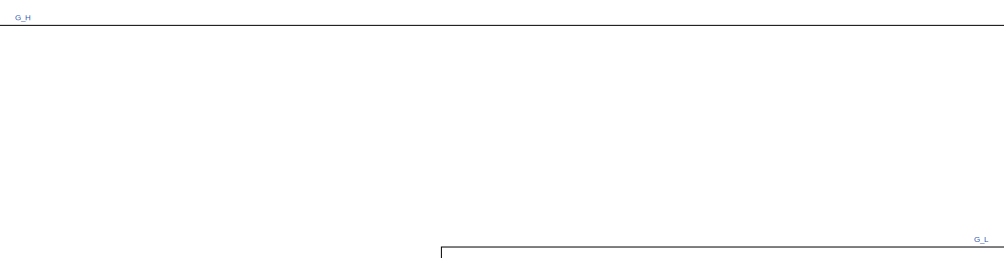
[diagram: root canvas - part 1/11, top center region]
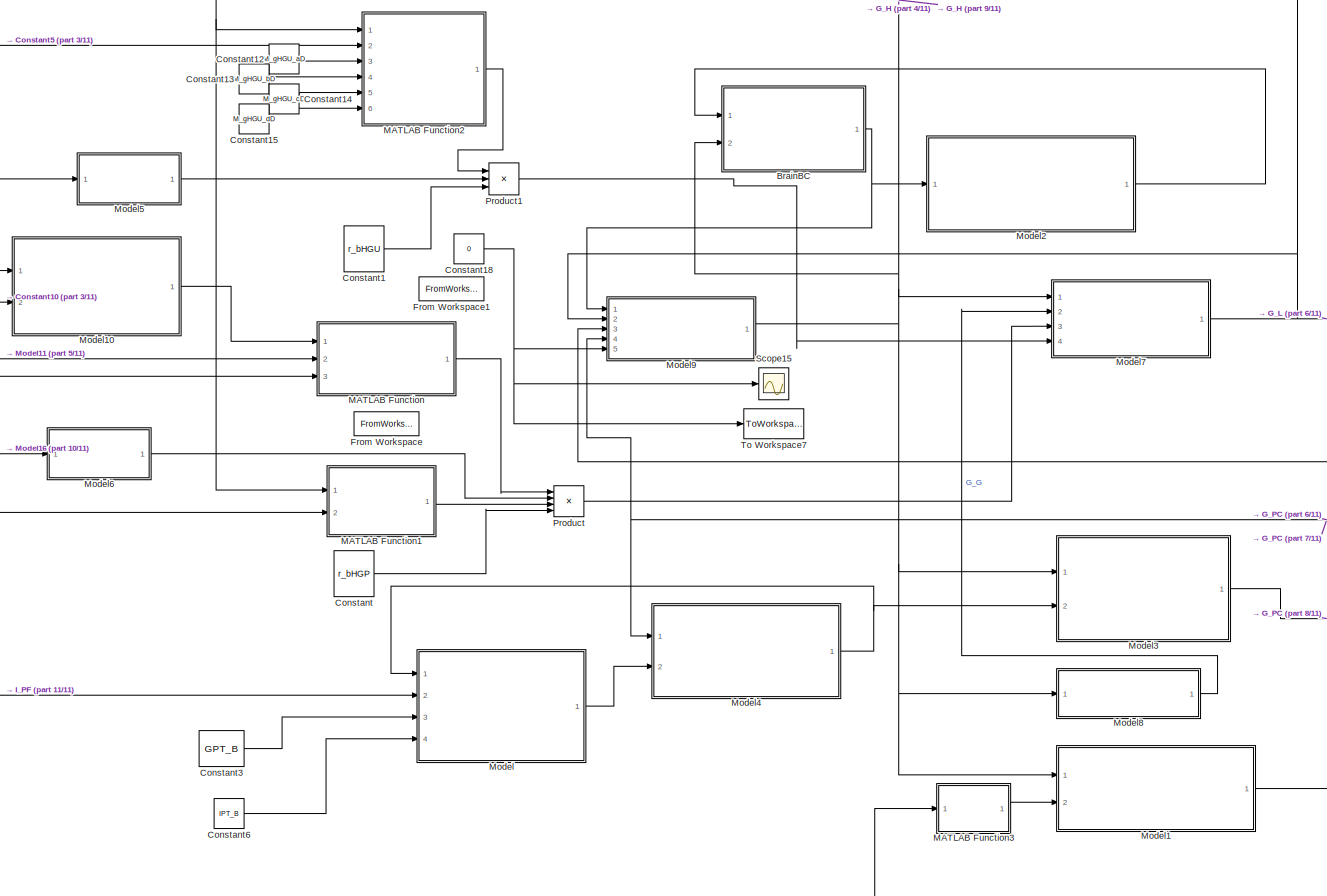
[diagram: root canvas - part 2/11, top right region]
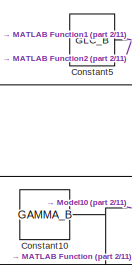
[diagram: root canvas - part 3/11, top center region]
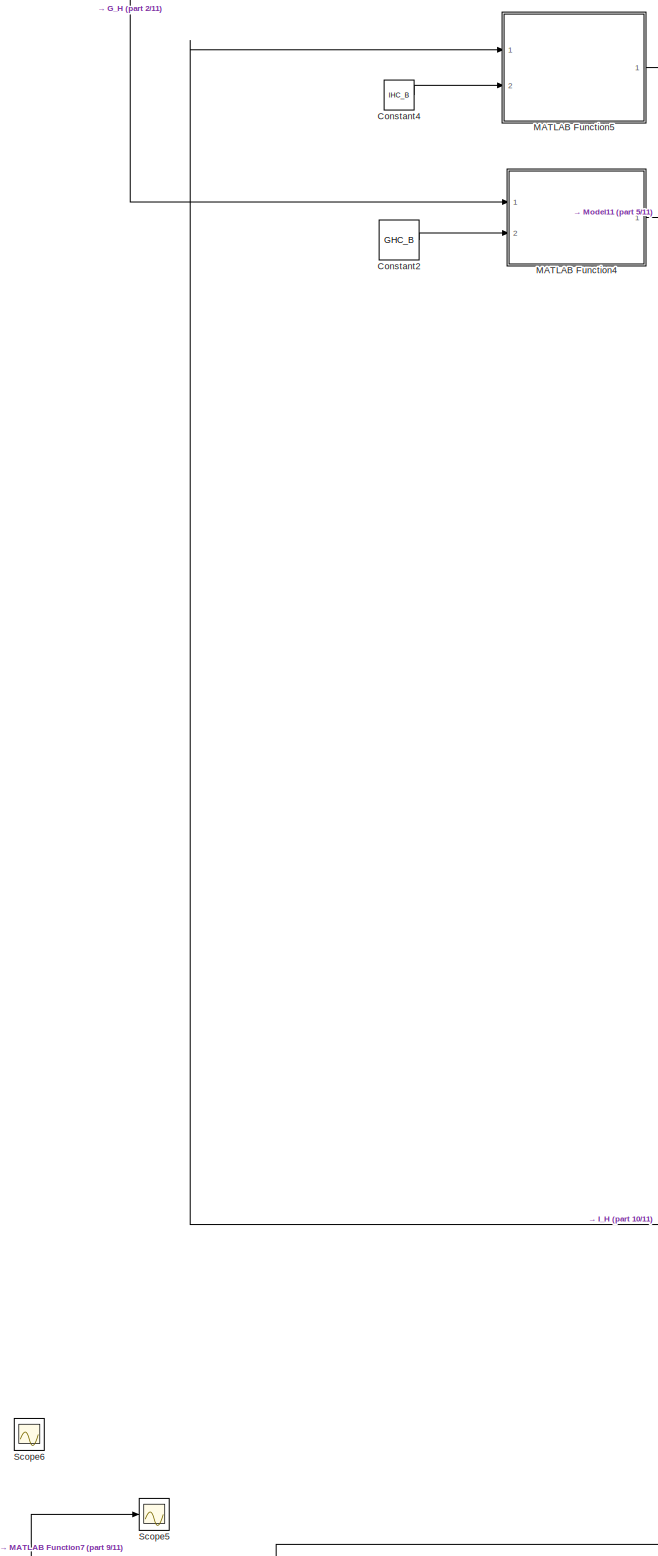
[diagram: root canvas - part 4/11, middle left region]
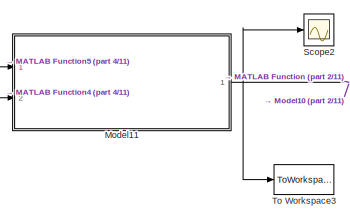
[diagram: root canvas - part 5/11, top left region]
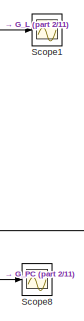
[diagram: root canvas - part 6/11, top right region]
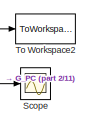
[diagram: root canvas - part 7/11, top right region]
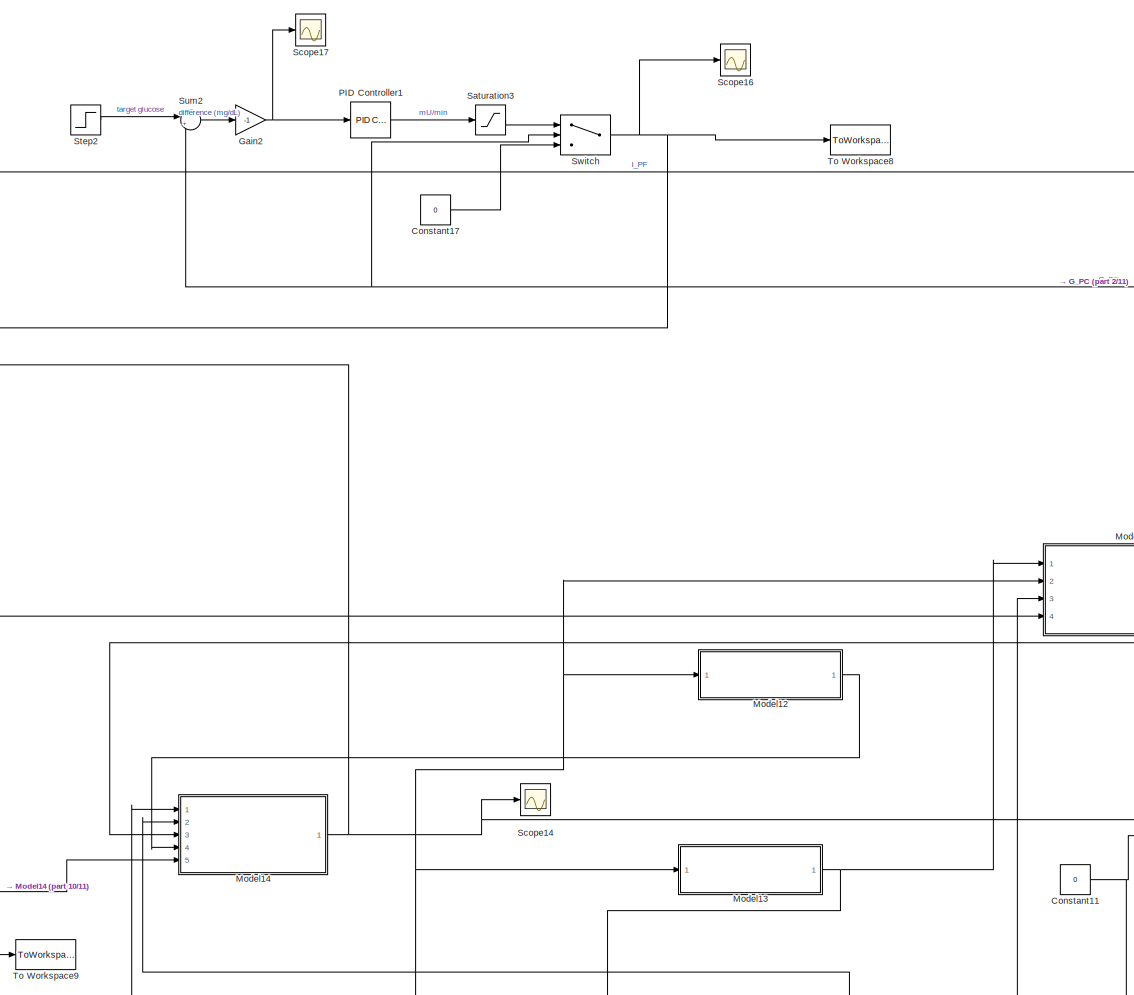
[diagram: root canvas - part 8/11, bottom center region]
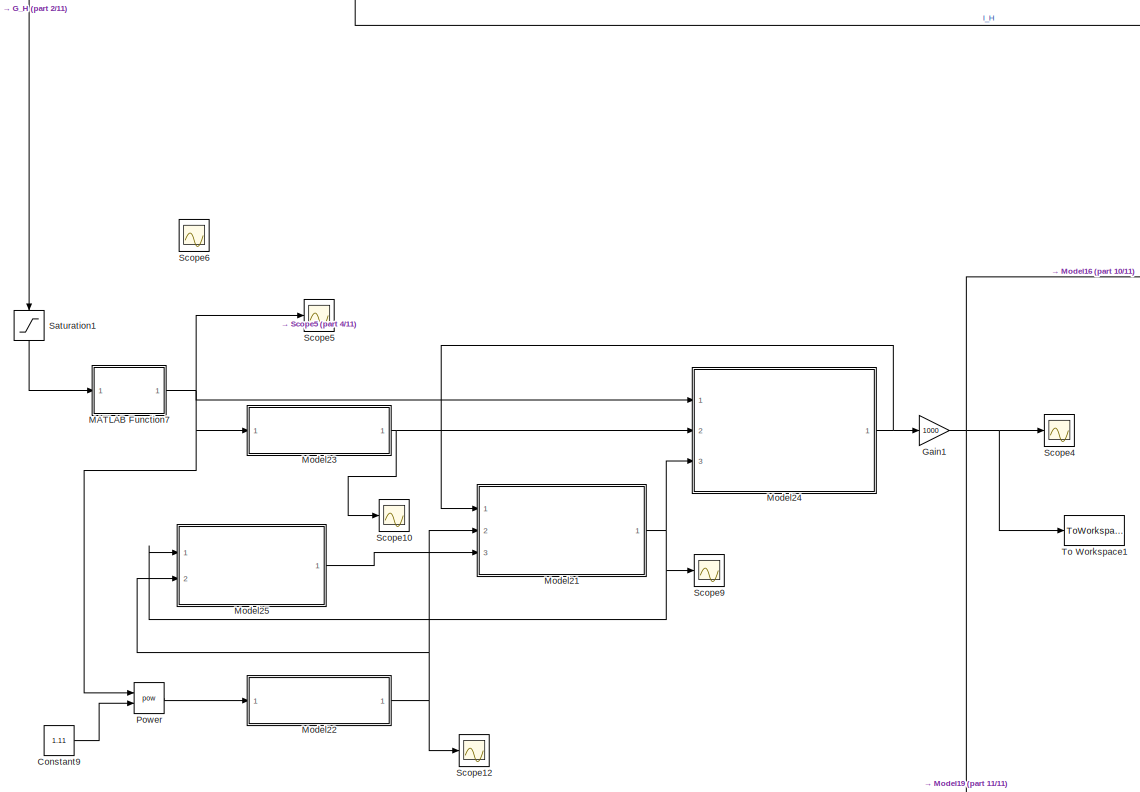
[diagram: root canvas - part 9/11, bottom left region]
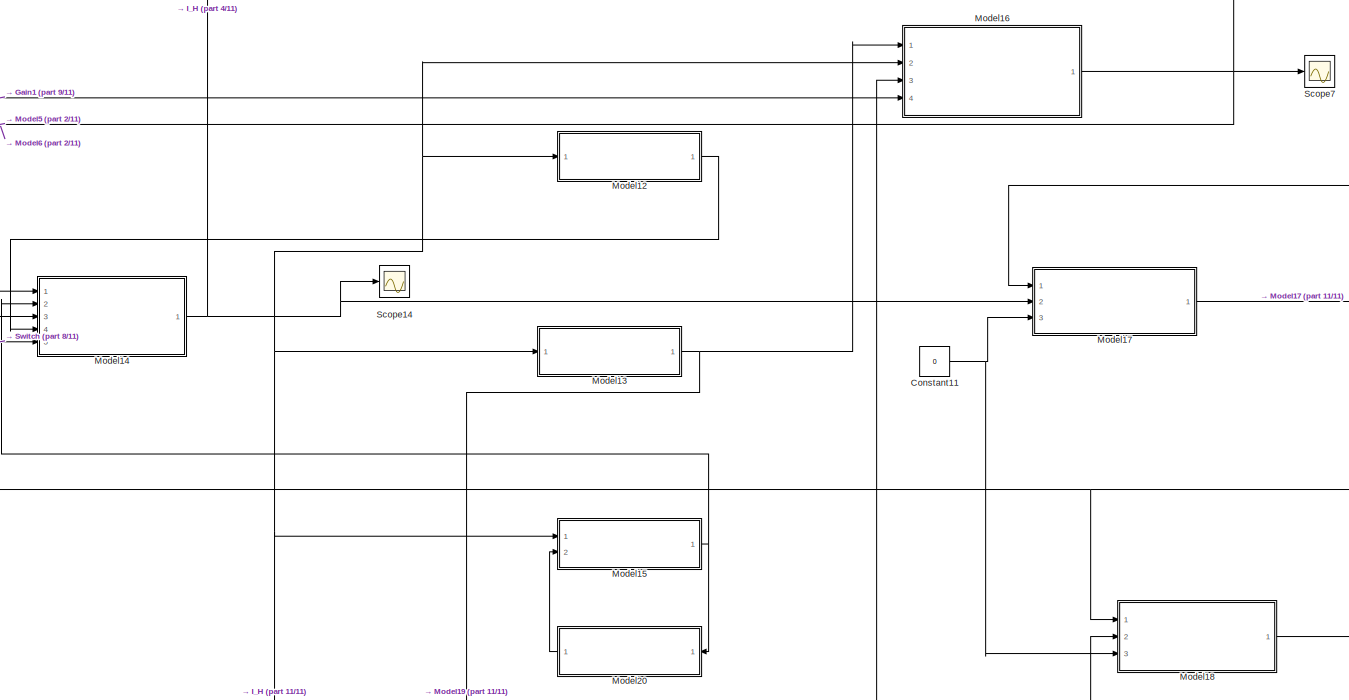
[diagram: root canvas - part 10/11, bottom center region]
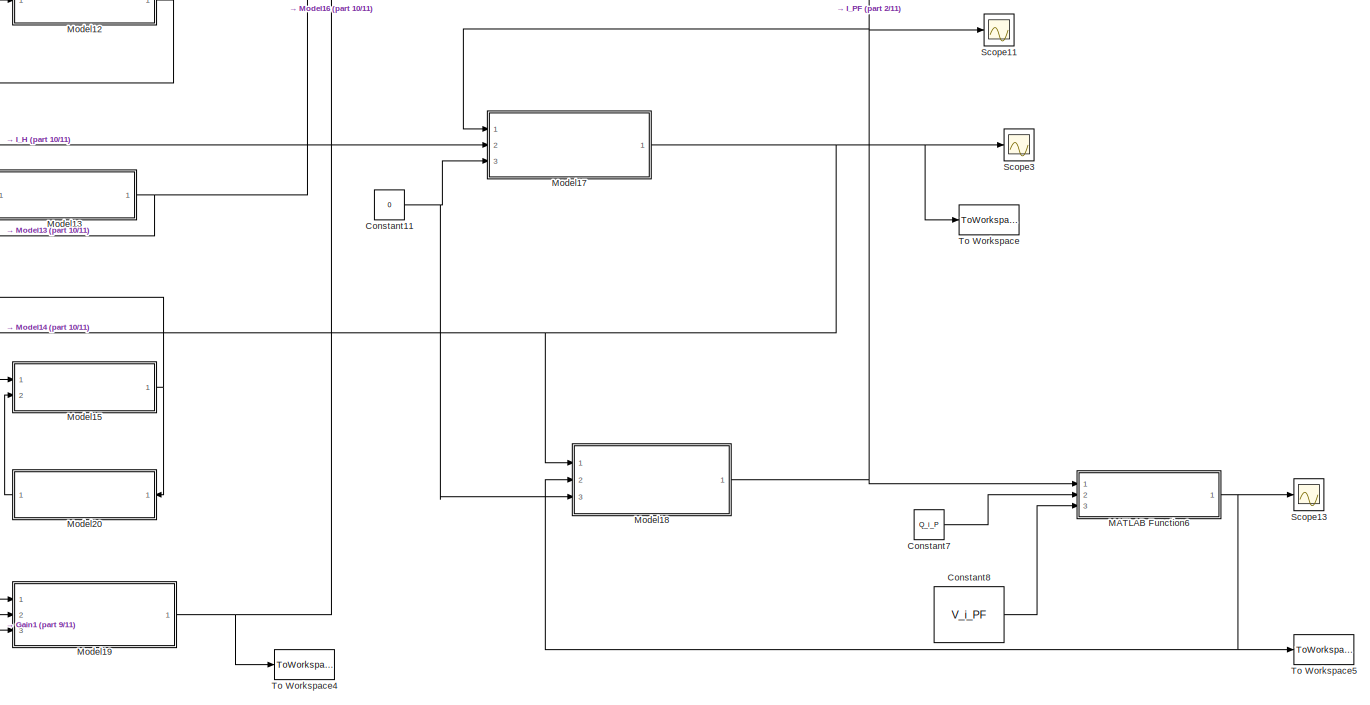
[diagram: root canvas - part 11/11, bottom right region]
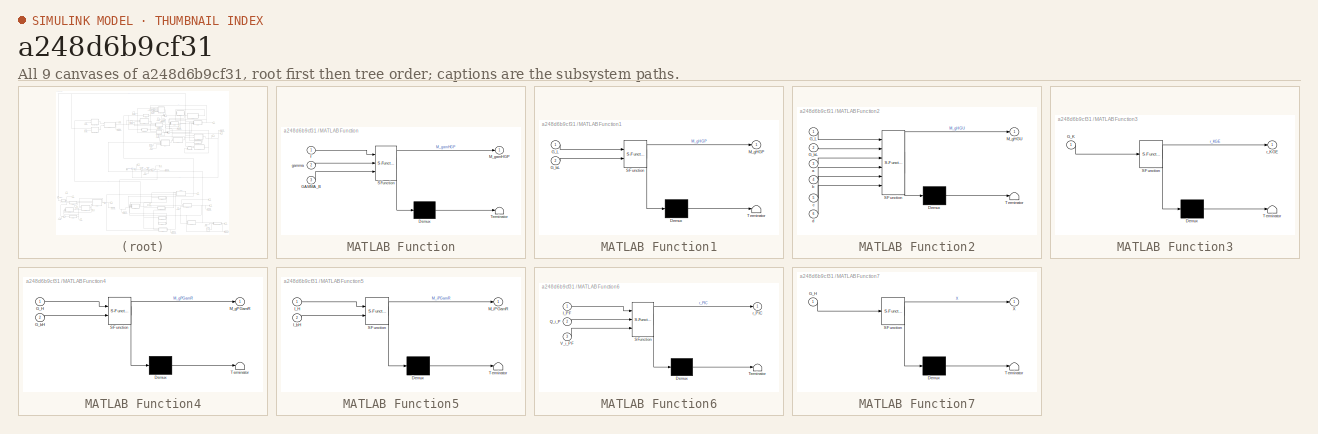
[diagram: thumbnail index - all 9 canvases of the model, root first then tree order]
MODEL slx_a248d6b9cf31
KIND model
CONFIG AbsTol = auto
CONFIG EnableMultiTasking = off
CONFIG FixedStep = auto
CONFIG MaxStep = auto
CONFIG MinStep = auto
CONFIG RelTol = 1e-3
CONFIG SampleTimeConstraint = Unconstrained
CONFIG Solver = VariableStepAuto
CONFIG SolverName = VariableStepAuto
CONFIG StartTime = 0.0
CONFIG StopTime = 1500
BLOCK [ModelReference] BrainBC
  ModelNameDialog = BrainBC
  ModelReferenceVersion = 1.6
  Ports = [2, 1]
BLOCK [Constant] Constant
  Value = r_bHGP
BLOCK [Constant] Constant1
  Value = r_bHGU
BLOCK [Constant] Constant10
  Value = GAMMA_B
BLOCK [Constant] Constant11
  Value = 0
BLOCK [Constant] Constant12
  Value = M_gHGU_aD
BLOCK [Constant] Constant13
  Value = M_gHGU_bD
BLOCK [Constant] Constant14
  Value = M_gHGU_cD
BLOCK [Constant] Constant15
  Value = M_gHGU_dD
BLOCK [Constant] Constant17
  Value = 0
BLOCK [Constant] Constant18
  Value = 0
BLOCK [Constant] Constant2
  Value = GHC_B
BLOCK [Constant] Constant3
  Value = GPT_B
BLOCK [Constant] Constant4
  Value = IHC_B
BLOCK [Constant] Constant5
  Value = GLC_B
BLOCK [Constant] Constant6
  Value = IPT_B
BLOCK [Constant] Constant7
  Value = Q_i_P
BLOCK [Constant] Constant8
  Value = V_i_PF
BLOCK [Constant] Constant9
  Value = 1.11
BLOCK [FromWorkspace] From Workspace
  SampleTime = 0
  VariableName = glucoseInputTS
  ZeroCross = on
BLOCK [FromWorkspace] From Workspace1
  SampleTime = 0
  VariableName = glucoseInputTS
  ZeroCross = on
BLOCK [Gain] Gain1
  Gain = 1000
  OutDataTypeStr = Inherit: Inherit via internal rule
  ParamDataTypeStr = Inherit: Inherit via internal rule
  SaturateOnIntegerOverflow = off
BLOCK [Gain] Gain2
  Gain = -1
  OutDataTypeStr = Inherit: Inherit via internal rule
  ParamDataTypeStr = Inherit: Inherit via internal rule
  SaturateOnIntegerOverflow = off
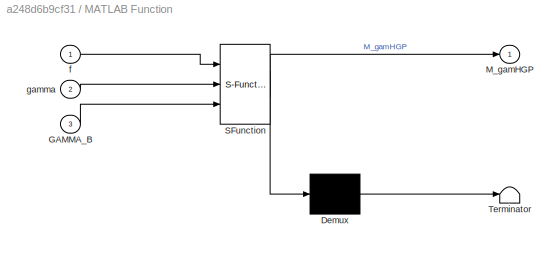
BLOCK [SubSystem] MATLAB Function
  ErrorFcn = Stateflow.Translate.translate
  PermitHierarchicalResolution = ExplicitOnly
  Ports = [3, 1]
  RequestExecContextInheritance = off
  SFBlockType = MATLAB Function
  TreatAsAtomicUnit = on
BLOCK [Demux] MATLAB Function/ Demux 
  Outputs = 1
  Ports = [1, 1]
BLOCK [S-Function] MATLAB Function/ SFunction 
  EnableBusSupport = on
  FunctionName = sf_sfun
  PortCounts = [3 2]
  Ports = [3, 2]
  SFcnIsStateOwnerBlock = off
  SFunctionDeploymentMode = off
  Tag = Stateflow S-Function GlucagonGlucoseIntegration 2
BLOCK [Terminator] MATLAB Function/ Terminator 
BLOCK [Inport] MATLAB Function/GAMMA_B
  IconDisplay = Port number
  Port = 3
BLOCK [Outport] MATLAB Function/M_gamHGP
  IconDisplay = Port number
BLOCK [Inport] MATLAB Function/f
  IconDisplay = Port number
BLOCK [Inport] MATLAB Function/gamma
  IconDisplay = Port number
  Port = 2
BLOCK [SubSystem] MATLAB Function1
  ErrorFcn = Stateflow.Translate.translate
  PermitHierarchicalResolution = ExplicitOnly
  Ports = [2, 1]
  RequestExecContextInheritance = off
  SFBlockType = MATLAB Function
  TreatAsAtomicUnit = on
BLOCK [Demux] MATLAB Function1/ Demux 
  Outputs = 1
  Ports = [1, 1]
BLOCK [S-Function] MATLAB Function1/ SFunction 
  EnableBusSupport = on
  FunctionName = sf_sfun
  PortCounts = [2 2]
  Ports = [2, 2]
  SFcnIsStateOwnerBlock = off
  SFunctionDeploymentMode = off
  Tag = Stateflow S-Function GlucagonGlucoseIntegration 1
BLOCK [Terminator] MATLAB Function1/ Terminator 
BLOCK [Inport] MATLAB Function1/G_L
  IconDisplay = Port number
BLOCK [Inport] MATLAB Function1/G_bL
  IconDisplay = Port number
  Port = 2
BLOCK [Outport] MATLAB Function1/M_gHGP
  IconDisplay = Port number
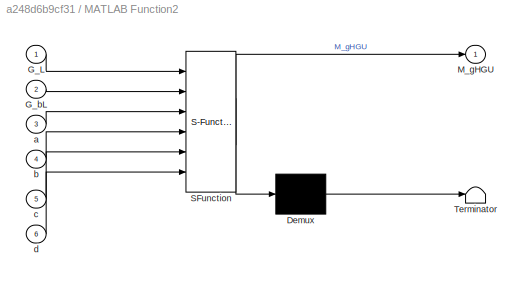
BLOCK [SubSystem] MATLAB Function2
  ErrorFcn = Stateflow.Translate.translate
  PermitHierarchicalResolution = ExplicitOnly
  Ports = [6, 1]
  RequestExecContextInheritance = off
  SFBlockType = MATLAB Function
  TreatAsAtomicUnit = on
BLOCK [Demux] MATLAB Function2/ Demux 
  Outputs = 1
  Ports = [1, 1]
BLOCK [S-Function] MATLAB Function2/ SFunction 
  EnableBusSupport = on
  FunctionName = sf_sfun
  PortCounts = [6 2]
  Ports = [6, 2]
  SFcnIsStateOwnerBlock = off
  SFunctionDeploymentMode = off
  Tag = Stateflow S-Function GlucagonGlucoseIntegration 3
BLOCK [Terminator] MATLAB Function2/ Terminator 
BLOCK [Inport] MATLAB Function2/G_L
  IconDisplay = Port number
BLOCK [Inport] MATLAB Function2/G_bL
  IconDisplay = Port number
  Port = 2
BLOCK [Outport] MATLAB Function2/M_gHGU
  IconDisplay = Port number
BLOCK [Inport] MATLAB Function2/a
  IconDisplay = Port number
  Port = 3
BLOCK [Inport] MATLAB Function2/b
  IconDisplay = Port number
  Port = 4
BLOCK [Inport] MATLAB Function2/c
  IconDisplay = Port number
  Port = 5
BLOCK [Inport] MATLAB Function2/d
  IconDisplay = Port number
  Port = 6
BLOCK [SubSystem] MATLAB Function3
  ErrorFcn = Stateflow.Translate.translate
  PermitHierarchicalResolution = ExplicitOnly
  Ports = [1, 1]
  RequestExecContextInheritance = off
  SFBlockType = MATLAB Function
  TreatAsAtomicUnit = on
BLOCK [Demux] MATLAB Function3/ Demux 
  Outputs = 1
  Ports = [1, 1]
BLOCK [S-Function] MATLAB Function3/ SFunction 
  EnableBusSupport = on
  FunctionName = sf_sfun
  PortCounts = [1 2]
  Ports = [1, 2]
  SFcnIsStateOwnerBlock = off
  SFunctionDeploymentMode = off
  Tag = Stateflow S-Function GlucagonGlucoseIntegration 4
BLOCK [Terminator] MATLAB Function3/ Terminator 
BLOCK [Inport] MATLAB Function3/G_K
  IconDisplay = Port number
BLOCK [Outport] MATLAB Function3/r_KGE
  IconDisplay = Port number
BLOCK [SubSystem] MATLAB Function4
  ErrorFcn = Stateflow.Translate.translate
  PermitHierarchicalResolution = ExplicitOnly
  Ports = [2, 1]
  RequestExecContextInheritance = off
  SFBlockType = MATLAB Function
  TreatAsAtomicUnit = on
BLOCK [Demux] MATLAB Function4/ Demux 
  Outputs = 1
  Ports = [1, 1]
BLOCK [S-Function] MATLAB Function4/ SFunction 
  EnableBusSupport = on
  FunctionName = sf_sfun
  PortCounts = [2 2]
  Ports = [2, 2]
  SFcnIsStateOwnerBlock = off
  SFunctionDeploymentMode = off
  Tag = Stateflow S-Function GlucagonGlucoseIntegration 5
BLOCK [Terminator] MATLAB Function4/ Terminator 
BLOCK [Inport] MATLAB Function4/G_H
  IconDisplay = Port number
BLOCK [Inport] MATLAB Function4/G_bH
  IconDisplay = Port number
  Port = 2
BLOCK [Outport] MATLAB Function4/M_gPGamR
  IconDisplay = Port number
BLOCK [SubSystem] MATLAB Function5
  ErrorFcn = Stateflow.Translate.translate
  PermitHierarchicalResolution = ExplicitOnly
  Ports = [2, 1]
  RequestExecContextInheritance = off
  SFBlockType = MATLAB Function
  TreatAsAtomicUnit = on
BLOCK [Demux] MATLAB Function5/ Demux 
  Outputs = 1
  Ports = [1, 1]
BLOCK [S-Function] MATLAB Function5/ SFunction 
  EnableBusSupport = on
  FunctionName = sf_sfun
  PortCounts = [2 2]
  Ports = [2, 2]
  SFcnIsStateOwnerBlock = off
  SFunctionDeploymentMode = off
  Tag = Stateflow S-Function GlucagonGlucoseIntegration 6
BLOCK [Terminator] MATLAB Function5/ Terminator 
BLOCK [Inport] MATLAB Function5/I_H
  IconDisplay = Port number
BLOCK [Inport] MATLAB Function5/I_bH
  IconDisplay = Port number
  Port = 2
BLOCK [Outport] MATLAB Function5/M_iPGamR
  IconDisplay = Port number
BLOCK [SubSystem] MATLAB Function6
  ErrorFcn = Stateflow.Translate.translate
  PermitHierarchicalResolution = ExplicitOnly
  Ports = [3, 1]
  RequestExecContextInheritance = off
  SFBlockType = MATLAB Function
  TreatAsAtomicUnit = on
BLOCK [Demux] MATLAB Function6/ Demux 
  Outputs = 1
  Ports = [1, 1]
BLOCK [S-Function] MATLAB Function6/ SFunction 
  EnableBusSupport = on
  FunctionName = sf_sfun
  PortCounts = [3 2]
  Ports = [3, 2]
  SFcnIsStateOwnerBlock = off
  SFunctionDeploymentMode = off
  Tag = Stateflow S-Function GlucagonGlucoseIntegration 7
BLOCK [Terminator] MATLAB Function6/ Terminator 
BLOCK [Inport] MATLAB Function6/I_PF
  IconDisplay = Port number
BLOCK [Inport] MATLAB Function6/Q_i_P
  IconDisplay = Port number
  Port = 2
BLOCK [Inport] MATLAB Function6/V_i_PF
  IconDisplay = Port number
  Port = 3
BLOCK [Outport] MATLAB Function6/r_PIC
  IconDisplay = Port number
BLOCK [SubSystem] MATLAB Function7
  ErrorFcn = Stateflow.Translate.translate
  PermitHierarchicalResolution = ExplicitOnly
  Ports = [1, 1]
  RequestExecContextInheritance = off
  SFBlockType = MATLAB Function
  TreatAsAtomicUnit = on
BLOCK [Demux] MATLAB Function7/ Demux 
  Outputs = 1
  Ports = [1, 1]
BLOCK [S-Function] MATLAB Function7/ SFunction 
  EnableBusSupport = on
  FunctionName = sf_sfun
  PortCounts = [1 2]
  Ports = [1, 2]
  SFcnIsStateOwnerBlock = off
  SFunctionDeploymentMode = off
  Tag = Stateflow S-Function GlucagonGlucoseIntegration 8
BLOCK [Terminator] MATLAB Function7/ Terminator 
BLOCK [Inport] MATLAB Function7/G_H
  IconDisplay = Port number
BLOCK [Outport] MATLAB Function7/X
  IconDisplay = Port number
BLOCK [ModelReference] Model
  ModelNameDialog = r_PGU
  ModelReferenceVersion = 1.9
  Ports = [4, 1]
BLOCK [ModelReference] Model1
  ModelNameDialog = G_K
  ModelReferenceVersion = 1.4
  Ports = [2, 1]
BLOCK [ModelReference] Model10
  ModelNameDialog = f
  ModelReferenceVersion = 1.10
  Ports = [2, 1]
BLOCK [ModelReference] Model11
  ModelNameDialog = gamma_block
  ModelReferenceVersion = 1.5
  Ports = [2, 1]
BLOCK [ModelReference] Model12
  ModelNameDialog = Brain_Insulin32
  ModelReferenceVersion = 1.3
  Ports = [1, 1]
BLOCK [ModelReference] Model13
  ModelNameDialog = Gastro_Insulin34
  ModelReferenceVersion = 1.3
  Ports = [1, 1]
BLOCK [ModelReference] Model14
  ModelNameDialog = Heart_Insulin33
  ModelReferenceVersion = 1.9
  Ports = [5, 1]
BLOCK [ModelReference] Model15
  ModelNameDialog = Kidney_Insulin36
  ModelReferenceVersion = 1.7
  Ports = [2, 1]
BLOCK [ModelReference] Model16
  ModelNameDialog = Liver_Insulin35
  ModelReferenceVersion = 1.7
  Ports = [4, 1]
BLOCK [ModelReference] Model17
  ModelNameDialog = PeripheralCap_Insulin37
  ModelReferenceVersion = 1.9
  Ports = [3, 1]
BLOCK [ModelReference] Model18
  ModelNameDialog = PeripheralFluid_Insulin38
  ModelReferenceVersion = 1.5
  Ports = [3, 1]
BLOCK [ModelReference] Model19
  ModelNameDialog = r_LIC
  ModelReferenceVersion = 1.2
  Ports = [3, 1]
BLOCK [ModelReference] Model2
  ModelNameDialog = BrainBF
  ModelReferenceVersion = 1.6
  Ports = [1, 1]
BLOCK [ModelReference] Model20
  ModelNameDialog = r_KIC
  ModelReferenceVersion = 1.1
  Ports = [1, 1]
BLOCK [ModelReference] Model21
  ModelNameDialog = m_model
  ModelReferenceVersion = 1.10
  Ports = [3, 1]
BLOCK [ModelReference] Model22
  ModelNameDialog = P_model
  ModelReferenceVersion = 1.10
  Ports = [1, 1]
BLOCK [ModelReference] Model23
  ModelNameDialog = R_model.slx
  ModelReferenceVersion = 1.8
  Ports = [1, 1]
BLOCK [ModelReference] Model24
  ModelNameDialog = S_new
  ModelReferenceVersion = 1.4
  Ports = [3, 1]
BLOCK [ModelReference] Model25
  ModelNameDialog = ms_model
  ModelReferenceVersion = 1.8
  Ports = [2, 1]
BLOCK [ModelReference] Model3
  ModelNameDialog = G_PC
  ModelReferenceVersion = 1.5
  Ports = [2, 1]
BLOCK [ModelReference] Model4
  ModelNameDialog = G_PF
  ModelReferenceVersion = 1.3
  Ports = [2, 1]
BLOCK [ModelReference] Model5
  ModelNameDialog = M_iHGU
  ModelReferenceVersion = 1.8
  Ports = [1, 1]
BLOCK [ModelReference] Model6
  ModelNameDialog = M_iHGP
  ModelReferenceVersion = 1.5
  Ports = [1, 1]
BLOCK [ModelReference] Model7
  ModelNameDialog = Liver
  ModelReferenceVersion = 1.6
  Ports = [4, 1]
BLOCK [ModelReference] Model8
  ModelNameDialog = GI
  ModelReferenceVersion = 1.4
  Ports = [1, 1]
BLOCK [ModelReference] Model9
  ModelNameDialog = Heart
  ModelReferenceVersion = 1.9
  Ports = [5, 1]
BLOCK [Reference] PID Controller1  REF=simulink/Continuous/PID Controller
  Ports = [1, 1]
  SourceBlock = simulink/Continuous/PID Controller
  SourceProductBaseCode = SL
  SourceProductName = Simulink
  SourceType = PID 1dof
BLOCK [Math] Power
  Operator = pow
  Ports = [2, 1]
BLOCK [Product] Product
  InputSameDT = off
  Inputs = 4
  OutDataTypeStr = Inherit: Inherit via internal rule
  Ports = [4, 1]
  RndMeth = Floor
  SaturateOnIntegerOverflow = off
BLOCK [Product] Product1
  InputSameDT = off
  Inputs = 3
  OutDataTypeStr = Inherit: Inherit via internal rule
  Ports = [3, 1]
  RndMeth = Floor
  SaturateOnIntegerOverflow = off
BLOCK [Saturate] Saturation1
  InputPortMap = u0
  LowerLimit = 0
  Ports = [1, 1]
  UpperLimit = inf
BLOCK [Saturate] Saturation3
  InputPortMap = u0
  LowerLimit = 0
  Ports = [1, 1]
  UpperLimit = 12000
BLOCK [Scope] Scope
  Floating = off
  NumInputPorts = 1
  Ports = [1]
  ScopeSpecificationString = Simulink.scopes.TimeScopeBlockCfg('CurrentConfiguration', extmgr.ConfigurationSet(extmgr.Configuration('Core','General UI',true),extmgr.Configuration('Core','Source UI',true),extmgr.Configuration('Sources','WiredSimulink',true,'DataLoggingVariableName','ScopeData1'),extmgr.Configuration('Visuals','Time Domain',true,'SerializedDisplays',{struct('MinYLimReal','48.1591','MaxYLimReal','543.96104','YLa...<+1416ch>
BLOCK [Scope] Scope1
  Floating = off
  NumInputPorts = 1
  Ports = [1]
  ScopeSpecificationString = Simulink.scopes.TimeScopeBlockCfg('CurrentConfiguration', extmgr.ConfigurationSet(extmgr.Configuration('Core','General UI',true),extmgr.Configuration('Core','Source UI',true),extmgr.Configuration('Sources','WiredSimulink',true),extmgr.Configuration('Visuals','Time Domain',true,'SerializedDisplays',{struct('MinYLimReal','45.77002','MaxYLimReal','178.0754','YLabelReal','','MinYLimMag','45.77002','Ma...<+1358ch>
BLOCK [Scope] Scope10
  Floating = off
  NumInputPorts = 1
  Ports = [1]
  ScopeSpecificationString = Simulink.scopes.TimeScopeBlockCfg('CurrentConfiguration', extmgr.ConfigurationSet(extmgr.Configuration('Core','General UI',true),extmgr.Configuration('Core','Source UI',true),extmgr.Configuration('Sources','WiredSimulink',true,'DataLoggingVariableName','ScopeData2'),extmgr.Configuration('Visuals','Time Domain',true,'SerializedDisplays',{struct('MinYLimReal','-0.04433','MaxYLimReal','0.39893','YLab...<+1442ch>
BLOCK [Scope] Scope11
  Floating = off
  NumInputPorts = 1
  Ports = [1]
  ScopeSpecificationString = Simulink.scopes.TimeScopeBlockCfg('CurrentConfiguration', extmgr.ConfigurationSet(extmgr.Configuration('Core','General UI',true),extmgr.Configuration('Core','Source UI',true),extmgr.Configuration('Sources','WiredSimulink',true,'DataLoggingVariableName','ScopeData3'),extmgr.Configuration('Visuals','Time Domain',true,'SerializedDisplays',{struct('MinYLimReal','0.91132','MaxYLimReal','7.31418','YLabe...<+1391ch>
BLOCK [Scope] Scope12
  Floating = off
  NumInputPorts = 1
  Ports = [1]
  ScopeSpecificationString = Simulink.scopes.TimeScopeBlockCfg('CurrentConfiguration', extmgr.ConfigurationSet(extmgr.Configuration('Core','General UI',true),extmgr.Configuration('Core','Source UI',true),extmgr.Configuration('Sources','WiredSimulink',true,'DataLoggingVariableName','ScopeData4'),extmgr.Configuration('Visuals','Time Domain',true,'SerializedDisplays',{struct('MinYLimReal','-0.02548','MaxYLimReal','0.22933','YLab...<+1441ch>
BLOCK [Scope] Scope13
  Floating = off
  NumInputPorts = 1
  Ports = [1]
  ScopeSpecificationString = Simulink.scopes.TimeScopeBlockCfg('CurrentConfiguration', extmgr.ConfigurationSet(extmgr.Configuration('Core','General UI',true),extmgr.Configuration('Core','Source UI',true),extmgr.Configuration('Sources','WiredSimulink',true,'DataLoggingVariableName','ScopeData5'),extmgr.Configuration('Visuals','Time Domain',true,'SerializedDisplays',{struct('MinYLimReal','0.37511','MaxYLimReal','3.01061','YLabe...<+1403ch>
BLOCK [Scope] Scope14
  Floating = off
  NumInputPorts = 1
  Ports = [1]
  ScopeSpecificationString = Simulink.scopes.TimeScopeBlockCfg('CurrentConfiguration', extmgr.ConfigurationSet(extmgr.Configuration('Core','General UI',true),extmgr.Configuration('Core','Source UI',true),extmgr.Configuration('Sources','WiredSimulink',true,'DataLoggingVariableName','ScopeData6'),extmgr.Configuration('Visuals','Time Domain',true,'SerializedDisplays',{struct('MinYLimReal','-0.33636','MaxYLimReal','50.86855','YLa...<+1397ch>
BLOCK [Scope] Scope15
  Floating = off
  NumInputPorts = 1
  Ports = [1]
  ScopeSpecificationString = Simulink.scopes.TimeScopeBlockCfg('CurrentConfiguration', extmgr.ConfigurationSet(extmgr.Configuration('Core','General UI',true),extmgr.Configuration('Core','Source UI',true),extmgr.Configuration('Sources','WiredSimulink',true,'DataLoggingVariableName','ScopeData1'),extmgr.Configuration('Visuals','Time Domain',true,'SerializedDisplays',{struct('MinYLimReal','16.8192','MaxYLimReal','733.45534','YLa...<+1419ch>
BLOCK [Scope] Scope16
  Floating = off
  NumInputPorts = 1
  Ports = [1]
  ScopeSpecificationString = Simulink.scopes.TimeScopeBlockCfg('CurrentConfiguration', extmgr.ConfigurationSet(extmgr.Configuration('Core','General UI',true),extmgr.Configuration('Core','Source UI',true),extmgr.Configuration('Sources','WiredSimulink',true,'DataLoggingVariableName','ScopeData2'),extmgr.Configuration('Visuals','Time Domain',true,'SerializedDisplays',{struct('MinYLimReal','-1500.00000','MaxYLimReal','13500.00000...<+1439ch>
BLOCK [Scope] Scope17
  Floating = off
  NumInputPorts = 1
  Ports = [1]
  ScopeSpecificationString = Simulink.scopes.TimeScopeBlockCfg('CurrentConfiguration', extmgr.ConfigurationSet(extmgr.Configuration('Core','General UI',true),extmgr.Configuration('Core','Source UI',true),extmgr.Configuration('Sources','WiredSimulink',true,'DataLoggingVariableName','ScopeData3'),extmgr.Configuration('Visuals','Time Domain',true,'SerializedDisplays',{struct('MinYLimReal','-80.64864','MaxYLimReal','67.55245','YL...<+1419ch>
BLOCK [Scope] Scope2
  Floating = off
  NumInputPorts = 1
  Ports = [1]
  ScopeSpecificationString = Simulink.scopes.TimeScopeBlockCfg('CurrentConfiguration', extmgr.ConfigurationSet(extmgr.Configuration('Core','General UI',true),extmgr.Configuration('Core','Source UI',true),extmgr.Configuration('Sources','WiredSimulink',true,'DataLoggingVariableName','ScopeData2'),extmgr.Configuration('Visuals','Time Domain',true,'SerializedDisplays',{struct('MinYLimReal','-0.46805','MaxYLimReal','4.21243','YLab...<+1366ch>
BLOCK [Scope] Scope3
  Floating = off
  NumInputPorts = 1
  Ports = [1]
  ScopeSpecificationString = Simulink.scopes.TimeScopeBlockCfg('CurrentConfiguration', extmgr.ConfigurationSet(extmgr.Configuration('Core','General UI',true),extmgr.Configuration('Core','Source UI',true),extmgr.Configuration('Sources','WiredSimulink',true,'DataLoggingVariableName','ScopeData1'),extmgr.Configuration('Visuals','Time Domain',true,'SerializedDisplays',{struct('MinYLimReal','0.58245','MaxYLimReal','28.96694','YLab...<+1394ch>
BLOCK [Scope] Scope4
  Floating = off
  NumInputPorts = 1
  Ports = [1]
  ScopeSpecificationString = Simulink.scopes.TimeScopeBlockCfg('CurrentConfiguration', extmgr.ConfigurationSet(extmgr.Configuration('Core','General UI',true),extmgr.Configuration('Core','Source UI',true),extmgr.Configuration('Sources','WiredSimulink',true,'DataLoggingVariableName','ScopeData2'),extmgr.Configuration('Visuals','Time Domain',true,'SerializedDisplays',{struct('MinYLimReal','-30.86712','MaxYLimReal','322.64582','Y...<+1445ch>
BLOCK [Scope] Scope5
  Floating = off
  NumInputPorts = 1
  Ports = [1]
  ScopeSpecificationString = Simulink.scopes.TimeScopeBlockCfg('CurrentConfiguration', extmgr.ConfigurationSet(extmgr.Configuration('Core','General UI',true),extmgr.Configuration('Core','Source UI',true),extmgr.Configuration('Sources','WiredSimulink',true,'DataLoggingVariableName','ScopeData3'),extmgr.Configuration('Visuals','Time Domain',true,'SerializedDisplays',{struct('MinYLimReal','-0.02132','MaxYLimReal','0.49374','YLab...<+1423ch>
BLOCK [Scope] Scope6
  Floating = off
  NumInputPorts = 1
  Ports = [1]
  ScopeSpecificationString = Simulink.scopes.TimeScopeBlockCfg('CurrentConfiguration', extmgr.ConfigurationSet(extmgr.Configuration('Core','General UI',true),extmgr.Configuration('Core','Source UI',true),extmgr.Configuration('Sources','WiredSimulink',true,'DataLoggingVariableName','ScopeData1'),extmgr.Configuration('Visuals','Time Domain',true,'SerializedDisplays',{struct('MinYLimReal','41.21822','MaxYLimReal','168.44007','YL...<+1402ch>
BLOCK [Scope] Scope7
  Floating = off
  NumInputPorts = 1
  Ports = [1]
  ScopeSpecificationString = Simulink.scopes.TimeScopeBlockCfg('CurrentConfiguration', extmgr.ConfigurationSet(extmgr.Configuration('Core','General UI',true),extmgr.Configuration('Core','Source UI',true),extmgr.Configuration('Sources','WiredSimulink',true,'DataLoggingVariableName','ScopeData1'),extmgr.Configuration('Visuals','Time Domain',true,'SerializedDisplays',{struct('MinYLimReal','-4.00897','MaxYLimReal','79.19525','YLa...<+1399ch>
BLOCK [Scope] Scope8
  Floating = off
  NumInputPorts = 1
  Ports = [1]
  ScopeSpecificationString = Simulink.scopes.TimeScopeBlockCfg('CurrentConfiguration', extmgr.ConfigurationSet(extmgr.Configuration('Core','General UI',true),extmgr.Configuration('Core','Source UI',true),extmgr.Configuration('Sources','WiredSimulink',true,'DataLoggingVariableName','ScopeData2'),extmgr.Configuration('Visuals','Time Domain',true,'SerializedDisplays',{struct('MinYLimReal','80.36817','MaxYLimReal','161.51465','YL...<+1448ch>
BLOCK [Scope] Scope9
  Floating = off
  NumInputPorts = 1
  Ports = [1]
  ScopeSpecificationString = Simulink.scopes.TimeScopeBlockCfg('CurrentConfiguration', extmgr.ConfigurationSet(extmgr.Configuration('Core','General UI',true),extmgr.Configuration('Core','Source UI',true),extmgr.Configuration('Sources','WiredSimulink',true,'DataLoggingVariableName','ScopeData1'),extmgr.Configuration('Visuals','Time Domain',true,'SerializedDisplays',{struct('MinYLimReal','5.59684','MaxYLimReal','12.92843','YLab...<+1443ch>
BLOCK [Step] Step2
  After = 120
  SampleTime = 0
  Time = 0
BLOCK [Sum] Sum2
  IconShape = round
  InputSameDT = off
  Inputs = |+-
  OutDataTypeStr = Inherit: Inherit via internal rule
  Ports = [2, 1]
  SaturateOnIntegerOverflow = off
BLOCK [Switch] Switch
  Criteria = u2 > Threshold
  InputSameDT = off
  SaturateOnIntegerOverflow = off
  Threshold = 120
BLOCK [ToWorkspace] To Workspace
  MaxDataPoints = inf
  Ports = [1]
  SampleTime = -1
  SaveFormat = Structure With Time
  VariableName = Insulin_PC
BLOCK [ToWorkspace] To Workspace1
  MaxDataPoints = inf
  Ports = [1]
  SampleTime = -1
  SaveFormat = Structure With Time
  VariableName = Insulin_Pancreas
BLOCK [ToWorkspace] To Workspace2
  MaxDataPoints = inf
  Ports = [1]
  SampleTime = -1
  SaveFormat = Structure With Time
  VariableName = Glucose_PC
BLOCK [ToWorkspace] To Workspace3
  MaxDataPoints = inf
  Ports = [1]
  SampleTime = -1
  SaveFormat = Structure With Time
  VariableName = Glucagon
BLOCK [ToWorkspace] To Workspace4
  MaxDataPoints = inf
  Ports = [1]
  SampleTime = -1
  SaveFormat = Structure With Time
  VariableName = Rate_LIC
BLOCK [ToWorkspace] To Workspace5
  MaxDataPoints = inf
  Ports = [1]
  SampleTime = -1
  SaveFormat = Structure With Time
  VariableName = Rate_PIC
BLOCK [ToWorkspace] To Workspace7
  MaxDataPoints = inf
  Ports = [1]
  SampleTime = -1
  SaveFormat = Structure With Time
  VariableName = Glucose_Input
BLOCK [ToWorkspace] To Workspace8
  MaxDataPoints = inf
  Ports = [1]
  SampleTime = -1
  SaveFormat = Structure With Time
  VariableName = Controller_Output
BLOCK [ToWorkspace] To Workspace9
  MaxDataPoints = inf
  Ports = [1]
  SampleTime = -1
  SaveFormat = Structure With Time
  VariableName = Insulin_Input
NET BrainBC:1 -> Model2:1, Model9:1
NET Constant10:1 -> MATLAB Function:3, Model10:2
NET Constant11:1 -> Model17:3, Model18:3
LINE Constant12:1 -> MATLAB Function2:3
LINE Constant13:1 -> MATLAB Function2:4
LINE Constant14:1 -> MATLAB Function2:5
LINE Constant15:1 -> MATLAB Function2:6
LINE Constant17:1 -> Switch:3
NET Constant18:1 -> Model9:5, Scope15:1, To Workspace7:1
LINE Constant1:1 -> Product1:3
LINE Constant2:1 -> MATLAB Function4:2
LINE Constant3:1 -> Model:3
LINE Constant4:1 -> MATLAB Function5:2
NET Constant5:1 -> MATLAB Function1:2, MATLAB Function2:2
LINE Constant6:1 -> Model:4
LINE Constant7:1 -> MATLAB Function6:2
LINE Constant8:1 -> MATLAB Function6:3
LINE Constant9:1 -> Power:2
LINE Constant:1 -> Product:4
NET Gain1:1 -> Model16:4, Model19:3, Scope4:1, To Workspace1:1
NET Gain2:1 -> PID Controller1:1, Scope17:1
LINE MATLAB Function1:1 -> Product:3
LINE MATLAB Function2:1 -> Product1:1
LINE MATLAB Function3:1 -> Model1:2
LINE MATLAB Function4:1 -> Model11:2
LINE MATLAB Function5:1 -> Model11:1
NET MATLAB Function6:1 -> Model18:2, Scope13:1, To Workspace5:1
NET MATLAB Function7:1 -> Model23:1, Model24:1, Power:1, Scope5:1
LINE MATLAB Function:1 -> Product:1
LINE Model10:1 -> MATLAB Function:1
NET Model11:1 -> MATLAB Function:2, Model10:1, Scope2:1, To Workspace3:1
LINE Model12:1 -> Model14:4
NET Model13:1 -> Model16:1, Model19:2
NET Model14:1 -> MATLAB Function5:1, Model12:1, Model13:1, Model15:1, Model16:2, Model17:2, Model19:1, Scope14:1
NET Model15:1 -> Model14:2, Model20:1
NET Model16:1 -> Model14:3, Model5:1, Model6:1, Scope7:1
NET Model17:1 -> Model14:1, Model18:1, Scope3:1, To Workspace:1
NET Model18:1 -> MATLAB Function6:1, Model17:1, Model:2, Scope11:1
NET Model19:1 -> Model16:3, To Workspace4:1
NET Model1:1 -> MATLAB Function3:1, Model9:3
LINE Model20:1 -> Model15:2
NET Model21:1 -> Model24:3, Model25:1, Scope9:1
NET Model22:1 -> Model21:2, Model25:2, Scope12:1
NET Model23:1 -> Model24:2, Scope10:1
NET Model24:1 -> Gain1:1, Model21:1
LINE Model25:1 -> Model21:3
LINE Model2:1 -> BrainBC:1
NET Model3:1 -> Model4:1, Model9:4, Scope8:1, Scope:1, Sum2:2, Switch:2, To Workspace2:1
NET Model4:1 -> Model3:2, Model:1
LINE Model5:1 -> Product1:2
LINE Model6:1 -> Product:2
NET Model7:1 -> MATLAB Function1:1, MATLAB Function2:1, Model9:2, Scope1:1
LINE Model8:1 -> Model7:2
NET Model9:1 -> BrainBC:2, MATLAB Function4:1, Model1:1, Model3:1, Model7:1, Model8:1, Saturation1:1
LINE Model:1 -> Model4:2
LINE PID Controller1:1 -> Saturation3:1
LINE Power:1 -> Model22:1
LINE Product1:1 -> Model7:4
LINE Product:1 -> Model7:3
LINE Saturation1:1 -> MATLAB Function7:1
LINE Saturation3:1 -> Switch:1
LINE Step2:1 -> Sum2:1
LINE Sum2:1 -> Gain2:1
NET Switch:1 -> Model14:5, Scope16:1, To Workspace8:1, To Workspace9:1
note: NET lines group one-source signal fan-out (src -> all destinations, sorted); 1:1 wires keep LINE
CHART MATLAB Function1 states=1 transitions=1
  STATE_LABEL 'eML_blk_kernel()'
  STATE_LABEL 'SCRIPT:\nfunction M_gHGP = fcn(G_L, G_bL)\n\nM_gHGP = 1.42 - 1.41*tanh(0.62*(G_L/G_bL - 0.497));\n'
CHART MATLAB Function states=1 transitions=1
  STATE_LABEL 'eML_blk_kernel()'
  STATE_LABEL 'SCRIPT:\nfunction M_gamHGP = fcn(f, gamma, GAMMA_B)\nM_gamHGP = 2.7*tanh(0.39*gamma/GAMMA_B) - f;\n'
CHART MATLAB Function2 states=1 transitions=1
  STATE_LABEL 'eML_blk_kernel()'
  STATE_LABEL 'SCRIPT:\nfunction M_gHGU = fcn(G_L, G_bL, a, b, c, d)\n\nM_gHGU = a + b*tanh(c*(G_L/G_bL - d));\n'
CHART MATLAB Function3 states=1 transitions=1
  STATE_LABEL 'eML_blk_kernel()'
  STATE_LABEL 'SCRIPT:\nfunction r_KGE = fcn(G_K)\n\nr_KGE = 71+(71*tanh(0.11*(G_K - 460)));\n'
CHART MATLAB Function4 states=1 transitions=1
  STATE_LABEL 'eML_blk_kernel()'
  STATE_LABEL 'SCRIPT:\nfunction M_gPGamR = fcn(G_H, G_bH)\nM_gPGamR = 1.31 - 0.61*tanh(1.06*(G_H/G_bH - 0.47));\n'
CHART MATLAB Function5 states=1 transitions=1
  STATE_LABEL 'eML_blk_kernel()'
  STATE_LABEL 'SCRIPT:\nfunction M_iPGamR = fcn(I_H, I_bH)\n\nM_iPGamR = 2.93 - 2.09*(tanh(4.18*(I_H/I_bH - 0.62)));\n'
CHART MATLAB Function6 states=1 transitions=1
  STATE_LABEL 'eML_blk_kernel()'
  STATE_LABEL 'SCRIPT:\nfunction r_PIC = fcn(I_PF, Q_i_P, V_i_PF)\nr_PIC=I_PF/(((1-0.15)/(0.15*Q_i_P))-(20/V_i_PF));\n\n'
CHART MATLAB Function7 states=1 transitions=1
  STATE_LABEL 'eML_blk_kernel()'
  STATE_LABEL 'SCRIPT:\nfunction X = X_function(G_H)\n%X_FUNCTION Calculate X from G_H (glucose output of heart)\n%   Inputs: G_H (g)\n%   Outputs: X (glucose enhanced excitation factor)\nnum = G_H^3.27;\ndenom = (132^3.27 + 5.93*((G_H)^3.02));\nX = num/denom;\nend'
